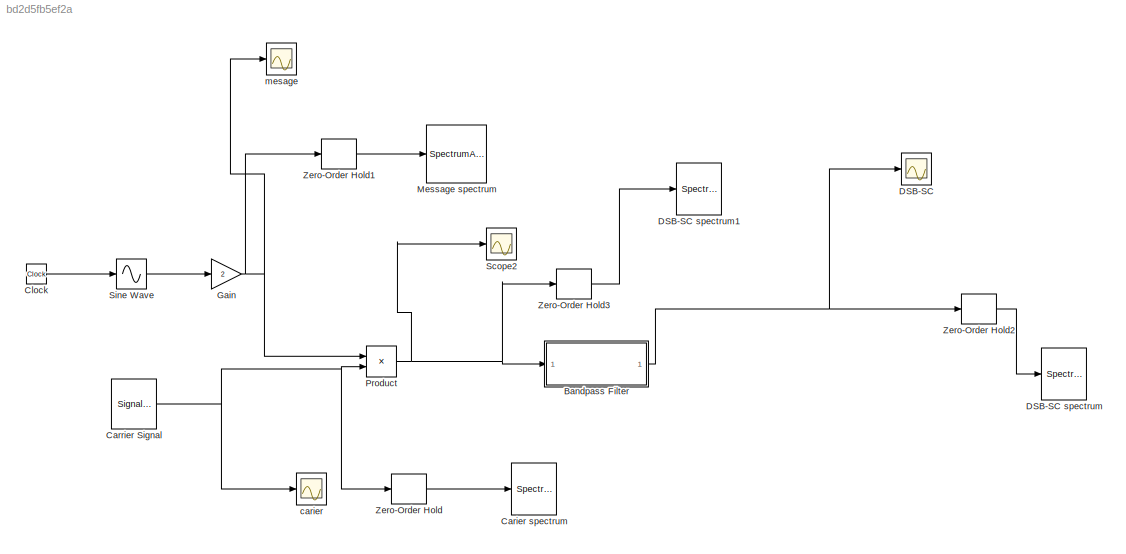
MODEL slx_bd2d5fb5ef2a
KIND model
CONFIG AbsTol = auto
CONFIG FixedStep = auto
CONFIG MaxStep = auto
CONFIG MinStep = auto
CONFIG RelTol = 1e-3
CONFIG SampleTimeConstraint = Unconstrained
CONFIG Solver = ode45
CONFIG SolverMode = Auto
CONFIG SolverName = ode45
CONFIG StartTime = 0.0
CONFIG StopTime = 10
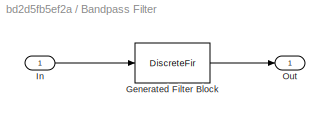
BLOCK [SubSystem] Bandpass Filter
  CopyFcn = fdesignblkfcn(gcbh, {'CopyFcn'});
  DialogController = fdesignblkfcn
  InitFcn = fdesignblkfcn(gcbh, {'InitFcn'});
  Ports = [1, 1]
  RequestExecContextInheritance = off
  UserDataPersistent = on
BLOCK [DiscreteFir] Bandpass Filter/Generated Filter Block
  Coefficients = [-4.2089415837660872e-05 -0.0014025699359127397 7.7506550936949734e-05 0.00057128919349381125 -9.8355641636346664e-05 -0.00066711051664750044 0.00015948550574925059 0.00075631980649035072 -0.00023183227068351514 -0.00083532589626739736 0.00031333464421453628 0.00089962011893319322 -0.00040054007469883838 -0.00094474087932631967 0.00048884052624121666 0.00096656259656608529 -0.00057259566206479542 ...<+4088ch>
  InputProcessing = Columns as channels (frame based)
  Ports = [1, 1]
  Tag = BlockMethodSubSystem
BLOCK [Inport] Bandpass Filter/In
  IconDisplay = Port number
BLOCK [Outport] Bandpass Filter/Out
  IconDisplay = Port number
BLOCK [SpectrumAnalyzer] Carier spectrum
  Ports = [1]
  ScopeSpecificationString = spbscopes.SpectrumAnalyzerBlockCfg('CurrentConfiguration', extmgr.ConfigurationSet(extmgr.Configuration('Core','General UI',true),extmgr.Configuration('Core','Source UI',true),extmgr.Configuration('Sources','WiredSimulink',true),extmgr.Configuration('Sources','SPTool',false),extmgr.Configuration('Sources','Simulink',false),extmgr.Configuration('Sources','File',false),extmgr.Configuration('Sources'...<+6708ch>
BLOCK [SignalGenerator] Carrier Signal
  Frequency = 5000
  Ports = [0, 1]
BLOCK [Clock] Clock
BLOCK [Scope] DSB-SC
  Floating = off
  NumInputPorts = 1
  Ports = [1]
  SaveName = ScopeData4
  ShowLegends = off
  ZoomMode = yonly
BLOCK [SpectrumAnalyzer] DSB-SC spectrum
  Ports = [1]
  ScopeSpecificationString = spbscopes.SpectrumAnalyzerBlockCfg('CurrentConfiguration', extmgr.ConfigurationSet(extmgr.Configuration('Core','General UI',true),extmgr.Configuration('Core','Source UI',true),extmgr.Configuration('Sources','WiredSimulink',true),extmgr.Configuration('Sources','Workspace',false),extmgr.Configuration('Sources','SPTool',false),extmgr.Configuration('Sources','File',false),extmgr.Configuration('Sources...<+6770ch>
BLOCK [SpectrumAnalyzer] DSB-SC spectrum1
  Ports = [1]
  ScopeSpecificationString = spbscopes.SpectrumAnalyzerBlockCfg('CurrentConfiguration', extmgr.ConfigurationSet(extmgr.Configuration('Core','General UI',true),extmgr.Configuration('Core','Source UI',true),extmgr.Configuration('Sources','WiredSimulink',true),extmgr.Configuration('Sources','Workspace',false),extmgr.Configuration('Sources','SPTool',false),extmgr.Configuration('Sources','File',false),extmgr.Configuration('Sources...<+6744ch>
BLOCK [Gain] Gain
  Gain = 2
  OutDataTypeStr = Inherit: Inherit via internal rule
  ParamDataTypeStr = Inherit: Inherit via internal rule
  SaturateOnIntegerOverflow = off
BLOCK [SpectrumAnalyzer] Message spectrum
  Ports = [1]
  ScopeSpecificationString = spbscopes.SpectrumAnalyzerBlockCfg('CurrentConfiguration', extmgr.ConfigurationSet(extmgr.Configuration('Core','General UI',true),extmgr.Configuration('Core','Source UI',true),extmgr.Configuration('Sources','WiredSimulink',true),extmgr.Configuration('Sources','SPTool',false),extmgr.Configuration('Sources','Workspace',false),extmgr.Configuration('Sources','Simulink',false),extmgr.Configuration('Sou...<+6793ch>
BLOCK [Product] Product
  InputSameDT = off
  OutDataTypeStr = Inherit: Inherit via internal rule
  Ports = [2, 1]
  RndMeth = Floor
  SaturateOnIntegerOverflow = off
BLOCK [Scope] Scope2
  Floating = off
  NumInputPorts = 1
  Ports = [1]
  SaveName = ScopeData2
  ShowLegends = off
  ZoomMode = xonly
BLOCK [Sin] Sine Wave
  Frequency = 2*pi*200
  Phase = pi/2
  Ports = [1, 1]
  SampleTime = 1/4000
  TimeSource = Use external signal
BLOCK [ZeroOrderHold] Zero-Order Hold
  SampleTime = 1/30000
BLOCK [ZeroOrderHold] Zero-Order Hold1
  SampleTime = 1/30000
BLOCK [ZeroOrderHold] Zero-Order Hold2
  SampleTime = 1/30000
BLOCK [ZeroOrderHold] Zero-Order Hold3
  SampleTime = 1/30000
BLOCK [Scope] carier
  Floating = off
  NumInputPorts = 1
  Ports = [1]
  SaveName = ScopeData1
  ShowLegends = off
  ZoomMode = xonly
BLOCK [Scope] mesage
  Floating = off
  LimitDataPoints = off
  NumInputPorts = 1
  Ports = [1]
  SampleInput = on
  SampleTime = 0
  SaveToWorkspace = on
  ShowLegends = off
  TickLabels = on
  TimeRange = 0.05
  ZoomMode = xonly
NET Bandpass Filter:1 -> DSB-SC:1, Zero-Order Hold2:1
NET Carrier Signal:1 -> Product:2, Zero-Order Hold:1, carier:1
LINE Clock:1 -> Sine Wave:1
NET Gain:1 -> Product:1, Zero-Order Hold1:1, mesage:1
NET Product:1 -> Bandpass Filter:1, Scope2:1, Zero-Order Hold3:1
LINE Sine Wave:1 -> Gain:1
LINE Zero-Order Hold1:1 -> Message spectrum:1
LINE Zero-Order Hold2:1 -> DSB-SC spectrum:1
LINE Zero-Order Hold3:1 -> DSB-SC spectrum1:1
LINE Zero-Order Hold:1 -> Carier spectrum:1
note: NET lines group one-source signal fan-out (src -> all destinations, sorted); 1:1 wires keep LINE
